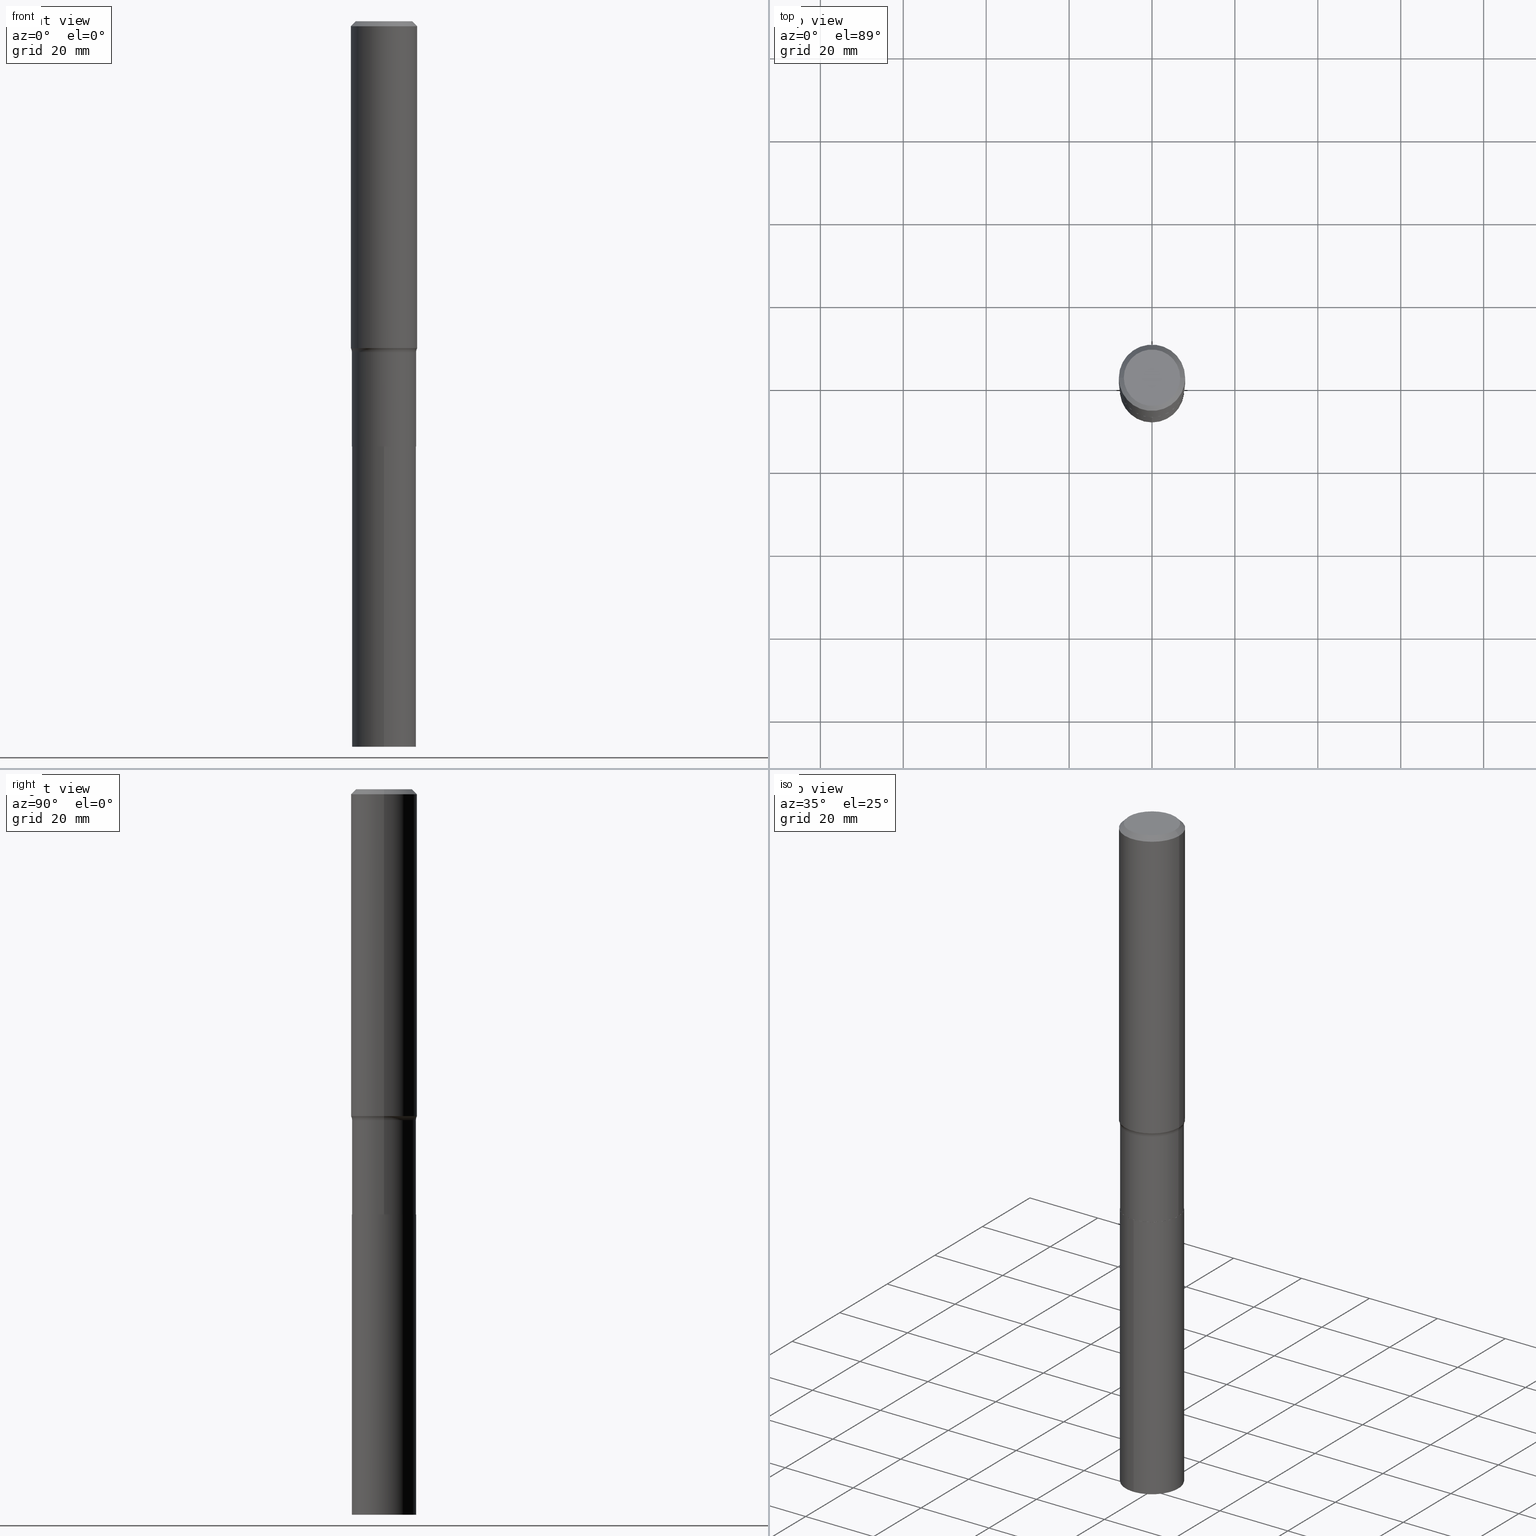
[diagram: canonical four-view strip — front | top / right | iso, engineering-drawing reading convention]
A machine part, canonical four-view strip (front | top / right | iso — engineering-drawing reading convention). The complete STEP part file that produces these views, byte-faithful:
ISO-10303-21;
HEADER;
FILE_DESCRIPTION (( 'STEP AP203' ),
    '1' );
FILE_NAME ('67916.STEP',
    '2024-04-19T17:05:05',
    ( '' ),
    ( '' ),
    'SwSTEP 2.0',
    'SolidWorks 2023',
    '' );
FILE_SCHEMA (( 'CONFIG_CONTROL_DESIGN' ));
ENDSEC;

DATA;
#1 = EDGE_CURVE ( 'NONE', #9, #276, #67, .T. ) ;
#2 = AXIS2_PLACEMENT_3D ( 'NONE', #173, #359, #240 ) ;
#3 = AXIS2_PLACEMENT_3D ( 'NONE', #283, #152, #318 ) ;
#4 = ORIENTED_EDGE ( 'NONE', *, *, #348, .F. ) ;
#5 = ORIENTED_EDGE ( 'NONE', *, *, #455, .T. ) ;
#6 = CC_DESIGN_DATE_AND_TIME_ASSIGNMENT ( #217, #436, ( #209 ) ) ;
#7 = PRODUCT ( '67916', '67916', '', ( #272 ) ) ;
#8 = CARTESIAN_POINT ( 'NONE',  ( 0.3149500000000000632, -2.325660151548443219E-15, -0.04724250000000034672 ) ) ;
#9 = VERTEX_POINT ( 'NONE', #286 ) ;
#10 = DIRECTION ( 'NONE',  ( -1.000000000000000000, 7.105427357601001859E-15, 0.000000000000000000 ) ) ;
#11 = CARTESIAN_POINT ( 'NONE',  ( 0.3045999999999999819, -1.622491378160409315E-14, -4.037800000000000722 ) ) ;
#12 = CIRCLE ( 'NONE', #57, 0.3045999999999999819 ) ;
#13 = VERTEX_POINT ( 'NONE', #201 ) ;
#14 = LOCAL_TIME ( 13, 5, 5.000000000000000000, #323 ) ;
#15 = DIRECTION ( 'NONE',  ( -1.000000000000000000, 6.982962677686266711E-15, 0.000000000000000000 ) ) ;
#16 = VERTEX_POINT ( 'NONE', #239 ) ;
#17 = PERSON_AND_ORGANIZATION ( #375, #422 ) ;
#18 = DIRECTION ( 'NONE',  ( 1.000000000000000000, -6.982962677686267499E-15, 4.876176775795936353E-29 ) ) ;
#19 = CIRCLE ( 'NONE', #193, 0.3045999999999999819 ) ;
#20 = APPLICATION_CONTEXT ( 'configuration controlled 3d designs of mechanical parts and assemblies' ) ;
#21 = EDGE_CURVE ( 'NONE', #97, #350, #12, .T. ) ;
#22 = EDGE_CURVE ( 'NONE', #449, #367, #351, .T. ) ;
#23 = AXIS2_PLACEMENT_3D ( 'NONE', #264, #194, #255 ) ;
#24 = CARTESIAN_POINT ( 'NONE',  ( -2.130501912961980867E-15, -0.3051000000000140822, -4.037799999999998946 ) ) ;
#25 = AXIS2_PLACEMENT_3D ( 'NONE', #138, #279, #208 ) ;
#26 = DIRECTION ( 'NONE',  ( -2.445468806185136597E-29, 3.491481338843145583E-15, 1.000000000000000000 ) ) ;
#27 = EDGE_CURVE ( 'NONE', #320, #13, #134, .T. ) ;
#28 = ORIENTED_EDGE ( 'NONE', *, *, #22, .F. ) ;
#29 = DIRECTION ( 'NONE',  ( -2.445318536696441627E-29, 3.491696533303765399E-15, 1.000000000000000000 ) ) ;
#30 = EDGE_CURVE ( 'NONE', #189, #16, #366, .T. ) ;
#31 = CARTESIAN_POINT ( 'NONE',  ( 0.000000000000000000, 0.000000000000000000, 0.000000000000000000 ) ) ;
#32 = FACE_OUTER_BOUND ( 'NONE', #314, .T. ) ;
#33 = ORIENTED_EDGE ( 'NONE', *, *, #381, .T. ) ;
#34 = CIRCLE ( 'NONE', #75, 0.3149500000000000632 ) ;
#35 = APPROVAL_DATE_TIME ( #363, #444 ) ;
#36 = CALENDAR_DATE ( 2024, 19, 4 ) ;
#37 = DIRECTION ( 'NONE',  ( -6.982962677686265922E-15, -1.000000000000000000, 3.491696533303765399E-15 ) ) ;
#38 = ORIENTED_EDGE ( 'NONE', *, *, #388, .F. ) ;
#39 = PERSON_AND_ORGANIZATION ( #375, #422 ) ;
#40 = AXIS2_PLACEMENT_3D ( 'NONE', #392, #26, #88 ) ;
#41 = ORIENTED_EDGE ( 'NONE', *, *, #213, .F. ) ;
#42 = CARTESIAN_POINT ( 'NONE',  ( 1.155300600762021849E-30, -1.649463071502985251E-16, -0.04724250000000034672 ) ) ;
#43 = LINE ( 'NONE', #287, #148 ) ;
#44 = EDGE_LOOP ( 'NONE', ( #324, #149 ) ) ;
#45 = DIRECTION ( 'NONE',  ( 1.000000000000000000, -6.982962677686267499E-15, 0.000000000000000000 ) ) ;
#46 = ORIENTED_EDGE ( 'NONE', *, *, #211, .F. ) ;
#47 = ORIENTED_EDGE ( 'NONE', *, *, #423, .F. ) ;
#48 = CIRCLE ( 'NONE', #393, 0.3050999999999998158 ) ;
#49 = ORIENTED_EDGE ( 'NONE', *, *, #377, .F. ) ;
#50 = CYLINDRICAL_SURFACE ( 'NONE', #40, 0.3050999999999999268 ) ;
#51 = ADVANCED_FACE ( 'NONE', ( #376 ), #107, .F. ) ;
#52 = CARTESIAN_POINT ( 'NONE',  ( 0.3050999999999999268, -2.130501912962079080E-15, 1.487721534295339594E-29 ) ) ;
#53 = DIRECTION ( 'NONE',  ( -2.445468806185136597E-29, 3.491481338843145583E-15, 1.000000000000000000 ) ) ;
#54 = ADVANCED_FACE ( 'NONE', ( #181 ), #404, .T. ) ;
#55 = FACE_OUTER_BOUND ( 'NONE', #235, .T. ) ;
#56 = DIRECTION ( 'NONE',  ( 1.000000000000000000, -6.982962677686267499E-15, 4.876236838442819371E-29 ) ) ;
#57 = AXIS2_PLACEMENT_3D ( 'NONE', #355, #179, #95 ) ;
#58 = AXIS2_PLACEMENT_3D ( 'NONE', #141, #459, #435 ) ;
#59 = EDGE_CURVE ( 'NONE', #347, #357, #118, .T. ) ;
#60 = CLOSED_SHELL ( 'NONE', ( #460, #237, #196, #171, #361, #288, #163, #125, #76, #164, #407, #177 ) ) ;
#61 = DIRECTION ( 'NONE',  ( 1.000000000000000000, -6.982962677686264344E-15, 0.000000000000000000 ) ) ;
#62 = LINE ( 'NONE', #116, #238 ) ;
#63 = AXIS2_PLACEMENT_3D ( 'NONE', #308, #127, #91 ) ;
#64 = CARTESIAN_POINT ( 'NONE',  ( 0.3050999999999998158, -1.310178372400889783E-14, -3.142300000000000537 ) ) ;
#65 = CARTESIAN_POINT ( 'NONE',  ( -0.3050999999999998158, -1.036585382337506044E-14, -3.142300000000000537 ) ) ;
#66 = LINE ( 'NONE', #431, #457 ) ;
#67 = CIRCLE ( 'NONE', #197, 0.3050999999999999268 ) ;
#68 = AXIS2_PLACEMENT_3D ( 'NONE', #390, #297, #203 ) ;
#69 = APPROVAL_STATUS ( 'not_yet_approved' ) ;
#70 = CARTESIAN_POINT ( 'NONE',  ( 0.3850999999999998313, -1.366042073822379633E-14, -3.142300000000000093 ) ) ;
#71 = DIRECTION ( 'NONE',  ( 1.000000000000000000, -6.982962677686273810E-15, 0.000000000000000000 ) ) ;
#72 = CARTESIAN_POINT ( 'NONE',  ( 9.874313945614344915E-29, -1.409790334998085431E-14, -4.037800000000000722 ) ) ;
#73 = PERSON_AND_ORGANIZATION ( #375, #422 ) ;
#74 = ORIENTED_EDGE ( 'NONE', *, *, #414, .F. ) ;
#75 = AXIS2_PLACEMENT_3D ( 'NONE', #454, #265, #271 ) ;
#76 = ADVANCED_FACE ( 'NONE', ( #55 ), #410, .T. ) ;
#77 = FACE_OUTER_BOUND ( 'NONE', #219, .T. ) ;
#78 = EDGE_CURVE ( 'NONE', #16, #189, #34, .T. ) ;
#79 = CARTESIAN_POINT ( 'NONE',  ( 9.874313945614344915E-29, -1.409790334998085431E-14, -4.037800000000000722 ) ) ;
#80 = ORIENTED_EDGE ( 'NONE', *, *, #315, .F. ) ;
#81 = DIRECTION ( 'NONE',  ( -2.445468806185136597E-29, 3.491481338843145583E-15, 1.000000000000000000 ) ) ;
#82 = CYLINDRICAL_SURFACE ( 'NONE', #267, 0.3149500000000002853 ) ;
#83 = PERSON_AND_ORGANIZATION ( #375, #422 ) ;
#84 = DIRECTION ( 'NONE',  ( 7.105427357601001859E-15, 1.000000000000000000, -3.491481338843145583E-15 ) ) ;
#85 =( GEOMETRIC_REPRESENTATION_CONTEXT ( 3 ) GLOBAL_UNCERTAINTY_ASSIGNED_CONTEXT ( ( #128 ) ) GLOBAL_UNIT_ASSIGNED_CONTEXT ( ( #245, #365, #289 ) ) REPRESENTATION_CONTEXT ( 'NONE', 'WORKASPACE' ) );
#86 = CARTESIAN_POINT ( 'NONE',  ( 7.590350070490401583E-29, -1.083700824945123372E-14, -3.103842523483722360 ) ) ;
#87 = PERSON_AND_ORGANIZATION ( #375, #422 ) ;
#88 = DIRECTION ( 'NONE',  ( 1.000000000000000000, -6.982962677686265133E-15, 4.876176775795935793E-29 ) ) ;
#89 = EDGE_LOOP ( 'NONE', ( #417, #188, #110, #46 ) ) ;
#90 = EDGE_CURVE ( 'NONE', #13, #320, #344, .T. ) ;
#91 = DIRECTION ( 'NONE',  ( 1.000000000000000000, 0.000000000000000000, 0.000000000000000000 ) ) ;
#92 = AXIS2_PLACEMENT_3D ( 'NONE', #162, #53, #227 ) ;
#93 = AXIS2_PLACEMENT_3D ( 'NONE', #126, #373, #187 ) ;
#94 = PERSON_AND_ORGANIZATION_ROLE ( 'creator' ) ;
#95 = DIRECTION ( 'NONE',  ( 1.000000000000000000, -6.982962677686269866E-15, 0.000000000000000000 ) ) ;
#96 = DIRECTION ( 'NONE',  ( -6.982962677686265133E-15, -1.000000000000000000, 3.581577179500837048E-15 ) ) ;
#97 = VERTEX_POINT ( 'NONE', #11 ) ;
#98 = CARTESIAN_POINT ( 'NONE',  ( 1.155300600762021849E-30, -1.649463071502985251E-16, -0.04724250000000034672 ) ) ;
#99 = PLANE ( 'NONE',  #23 ) ;
#100 = APPROVAL_PERSON_ORGANIZATION ( #437, #250, #115 ) ;
#101 = EDGE_CURVE ( 'NONE', #276, #357, #198, .T. ) ;
#102 = EDGE_LOOP ( 'NONE', ( #4, #117, #425, #258 ) ) ;
#103 = DIRECTION ( 'NONE',  ( -2.445468806185136597E-29, 3.491481338843145583E-15, 1.000000000000000000 ) ) ;
#104 = EDGE_LOOP ( 'NONE', ( #253, #215, #467, #28 ) ) ;
#105 = COORDINATED_UNIVERSAL_TIME_OFFSET ( 5, 0, .BEHIND. ) ;
#106 = LENGTH_MEASURE_WITH_UNIT ( LENGTH_MEASURE( 0.02539999999999999897 ), #427 );
#107 = PLANE ( 'NONE',  #280 ) ;
#108 = AXIS2_PLACEMENT_3D ( 'NONE', #461, #139, #428 ) ;
#109 = CIRCLE ( 'NONE', #58, 0.3050999999999999823 ) ;
#110 = ORIENTED_EDGE ( 'NONE', *, *, #30, .T. ) ;
#111 = CARTESIAN_POINT ( 'NONE',  ( -3.826124414564683467E-30, -4.873195857968637593E-14, -6.889800000000000146 ) ) ;
#112 = EDGE_CURVE ( 'NONE', #210, #347, #231, .T. ) ;
#113 = CC_DESIGN_PERSON_AND_ORGANIZATION_ASSIGNMENT ( #73, #214, ( #307 ) ) ;
#114 = DIRECTION ( 'NONE',  ( -2.445468806185136597E-29, 3.491481338843145583E-15, 1.000000000000000000 ) ) ;
#115 = APPROVAL_ROLE ( '' ) ;
#116 = CARTESIAN_POINT ( 'NONE',  ( -0.3050999999999999268, 2.167865886804065147E-15, -1.500767096036771338E-29 ) ) ;
#117 = ORIENTED_EDGE ( 'NONE', *, *, #414, .T. ) ;
#118 = CIRCLE ( 'NONE', #190, 0.07999999999999983513 ) ;
#119 = CARTESIAN_POINT ( 'NONE',  ( 0.3149500000000002853, -2.199284095337291843E-15, 1.535751875536931531E-29 ) ) ;
#120 = LOCAL_TIME ( 13, 5, 5.000000000000000000, #263 ) ;
#121 = DIRECTION ( 'NONE',  ( 1.000000000000000000, -6.982962677686266711E-15, 0.000000000000000000 ) ) ;
#122 = DIRECTION ( 'NONE',  ( 1.000000000000000000, -6.982962677686267499E-15, 0.000000000000000000 ) ) ;
#123 = PLANE ( 'NONE',  #191 ) ;
#124 = ORIENTED_EDGE ( 'NONE', *, *, #326, .T. ) ;
#125 = ADVANCED_FACE ( 'NONE', ( #370 ), #145, .T. ) ;
#126 = CARTESIAN_POINT ( 'NONE',  ( 7.684396629675556742E-29, -1.097128181104681915E-14, -3.142300000000000537 ) ) ;
#127 = DIRECTION ( 'NONE',  ( 0.000000000000000000, 0.000000000000000000, 1.000000000000000000 ) ) ;
#128 = UNCERTAINTY_MEASURE_WITH_UNIT (LENGTH_MEASURE( 1.000000000000000082E-05 ), #245, 'distance_accuracy_value', 'NONE');
#129 = MANIFOLD_SOLID_BREP ( 'Body-Move/Copy2[2]', #60 ) ;
#130 = APPROVAL_STATUS ( 'not_yet_approved' ) ;
#131 = AXIS2_PLACEMENT_3D ( 'NONE', #413, #81, #45 ) ;
#132 = APPLICATION_PROTOCOL_DEFINITION ( 'international standard', 'config_control_design', 1994, #20 ) ;
#133 = ORIENTED_EDGE ( 'NONE', *, *, #1, .F. ) ;
#134 = CIRCLE ( 'NONE', #207, 0.2677074999999999871 ) ;
#135 = CC_DESIGN_PERSON_AND_ORGANIZATION_ASSIGNMENT ( #87, #94, ( #309 ) ) ;
#136 = ORIENTED_EDGE ( 'NONE', *, *, #112, .T. ) ;
#137 = DIRECTION ( 'NONE',  ( -2.445468806185136597E-29, 3.491481338843145583E-15, 1.000000000000000000 ) ) ;
#138 = CARTESIAN_POINT ( 'NONE',  ( 9.874313945614344915E-29, -1.409790334998085431E-14, -4.037800000000000722 ) ) ;
#139 = DIRECTION ( 'NONE',  ( -2.445468806185136597E-29, 3.491481338843145583E-15, 1.000000000000000000 ) ) ;
#140 = ORIENTED_EDGE ( 'NONE', *, *, #78, .F. ) ;
#141 = CARTESIAN_POINT ( 'NONE',  ( 9.874313945614344915E-29, -1.409790334998085431E-14, -4.037800000000000722 ) ) ;
#142 = CIRCLE ( 'NONE', #452, 0.07999999999999983513 ) ;
#143 = APPROVAL_DATE_TIME ( #319, #250 ) ;
#144 = FACE_OUTER_BOUND ( 'NONE', #102, .T. ) ;
#145 = CYLINDRICAL_SURFACE ( 'NONE', #2, 0.3149500000000002853 ) ;
#146 = DATE_TIME_ROLE ( 'creation_date' ) ;
#147 = CLOSED_SHELL ( 'NONE', ( #54, #51, #396, #284 ) ) ;
#148 = VECTOR ( 'NONE', #466, 39.37007874015748143 ) ;
#149 = ORIENTED_EDGE ( 'NONE', *, *, #226, .F. ) ;
#150 = EDGE_LOOP ( 'NONE', ( #124, #5 ) ) ;
#151 = LINE ( 'NONE', #369, #291 ) ;
#152 = DIRECTION ( 'NONE',  ( -2.445318536696441347E-29, 3.491696533303765004E-15, 1.000000000000000000 ) ) ;
#153 = VERTEX_POINT ( 'NONE', #395 ) ;
#154 = DIRECTION ( 'NONE',  ( -2.445468806185136597E-29, 3.491481338843145583E-15, 1.000000000000000000 ) ) ;
#155 = DIMENSIONAL_EXPONENTS ( 1.000000000000000000, 0.000000000000000000, 0.000000000000000000, 0.000000000000000000, 0.000000000000000000, 0.000000000000000000, 0.000000000000000000 ) ;
#156 = CARTESIAN_POINT ( 'NONE',  ( 0.3050999999999999268, -1.622665952227350913E-14, -4.037300000000000111 ) ) ;
#157 = APPLICATION_PROTOCOL_DEFINITION ( 'international standard', 'config_control_design', 1994, #251 ) ;
#158 = VERTEX_POINT ( 'NONE', #65 ) ;
#159 = FACE_OUTER_BOUND ( 'NONE', #89, .T. ) ;
#160 = ORIENTED_EDGE ( 'NONE', *, *, #30, .F. ) ;
#161 = ORIENTED_EDGE ( 'NONE', *, *, #352, .F. ) ;
#162 = CARTESIAN_POINT ( 'NONE',  ( 7.684396629675554500E-29, -1.097128181104681757E-14, -3.142300000000000093 ) ) ;
#163 = ADVANCED_FACE ( 'NONE', ( #204 ), #299, .F. ) ;
#164 = ADVANCED_FACE ( 'NONE', ( #32 ), #99, .F. ) ;
#165 = DIRECTION ( 'NONE',  ( -2.445468806185136877E-29, 3.491481338843145188E-15, 1.000000000000000000 ) ) ;
#166 = CC_DESIGN_APPROVAL ( #250, ( #307 ) ) ;
#167 = ORIENTED_EDGE ( 'NONE', *, *, #388, .T. ) ;
#168 = CARTESIAN_POINT ( 'NONE',  ( 9.874313945614344915E-29, -1.409790334998085431E-14, -4.037800000000000722 ) ) ;
#169 = DIRECTION ( 'NONE',  ( -2.445318536696441627E-29, 3.491696533303765399E-15, 1.000000000000000000 ) ) ;
#170 = CARTESIAN_POINT ( 'NONE',  ( -0.3045999999999999819, -1.193359017685558770E-14, -4.037800000000000722 ) ) ;
#171 = ADVANCED_FACE ( 'NONE', ( #337 ), #379, .F. ) ;
#172 = DIRECTION ( 'NONE',  ( -2.445468806185136877E-29, 3.491481338843145188E-15, 1.000000000000000000 ) ) ;
#173 = CARTESIAN_POINT ( 'NONE',  ( 0.000000000000000000, 0.000000000000000000, 0.000000000000000000 ) ) ;
#174 = ORIENTED_EDGE ( 'NONE', *, *, #78, .T. ) ;
#175 = LINE ( 'NONE', #8, #345 ) ;
#176 = CONICAL_SURFACE ( 'NONE', #402, 0.3149500000000000632, 0.7853981633974453924 ) ;
#177 = ADVANCED_FACE ( 'NONE', ( #77 ), #391, .T. ) ;
#178 = SHAPE_DEFINITION_REPRESENTATION ( #374, #234 ) ;
#179 = DIRECTION ( 'NONE',  ( -2.445468806185136597E-29, 3.491481338843145583E-15, 1.000000000000000000 ) ) ;
#180 = CYLINDRICAL_SURFACE ( 'NONE', #353, 0.3050999999999999823 ) ;
#181 = FACE_OUTER_BOUND ( 'NONE', #104, .T. ) ;
#182 = ORIENTED_EDGE ( 'NONE', *, *, #261, .T. ) ;
#183 = AXIS2_PLACEMENT_3D ( 'NONE', #195, #220, #340 ) ;
#184 = ORIENTED_EDGE ( 'NONE', *, *, #247, .F. ) ;
#185 = FACE_OUTER_BOUND ( 'NONE', #277, .T. ) ;
#186 = PRODUCT_RELATED_PRODUCT_CATEGORY ( 'detail', '', ( #7 ) ) ;
#187 = DIRECTION ( 'NONE',  ( 1.000000000000000000, -6.982962677686266711E-15, 0.000000000000000000 ) ) ;
#188 = ORIENTED_EDGE ( 'NONE', *, *, #377, .T. ) ;
#189 = VERTEX_POINT ( 'NONE', #419 ) ;
#190 = AXIS2_PLACEMENT_3D ( 'NONE', #70, #439, #71 ) ;
#191 = AXIS2_PLACEMENT_3D ( 'NONE', #262, #221, #224 ) ;
#192 = CARTESIAN_POINT ( 'NONE',  ( 0.000000000000000000, 0.000000000000000000, 0.000000000000000000 ) ) ;
#193 = AXIS2_PLACEMENT_3D ( 'NONE', #451, #114, #418 ) ;
#194 = DIRECTION ( 'NONE',  ( 2.438088387897960049E-29, -3.491481338843145188E-15, -1.000000000000000000 ) ) ;
#195 = CARTESIAN_POINT ( 'NONE',  ( 9.874313945614344915E-29, -1.409790334998085431E-14, -4.037800000000000722 ) ) ;
#196 = ADVANCED_FACE ( 'NONE', ( #301 ), #82, .T. ) ;
#197 = AXIS2_PLACEMENT_3D ( 'NONE', #225, #137, #61 ) ;
#198 = LINE ( 'NONE', #52, #463 ) ;
#199 = CC_DESIGN_APPROVAL ( #444, ( #209 ) ) ;
#200 = VECTOR ( 'NONE', #406, 39.37007874015748143 ) ;
#201 = CARTESIAN_POINT ( 'NONE',  ( 0.2677074999999999871, -2.081133459643432627E-15, 4.096137381461924987E-18 ) ) ;
#202 = DIRECTION ( 'NONE',  ( -6.982962677686265133E-15, -1.000000000000000000, 3.581577179500837048E-15 ) ) ;
#203 = DIRECTION ( 'NONE',  ( 1.000000000000000000, -6.982962677686264344E-15, 0.000000000000000000 ) ) ;
#204 = FACE_OUTER_BOUND ( 'NONE', #450, .T. ) ;
#205 = CC_DESIGN_PERSON_AND_ORGANIZATION_ASSIGNMENT ( #39, #408, ( #209 ) ) ;
#206 = DIRECTION ( 'NONE',  ( -2.445468806185136597E-29, 3.491481338843145583E-15, 1.000000000000000000 ) ) ;
#207 = AXIS2_PLACEMENT_3D ( 'NONE', #316, #458, #278 ) ;
#208 = DIRECTION ( 'NONE',  ( 1.000000000000000000, -6.982962677686269866E-15, 0.000000000000000000 ) ) ;
#209 = SECURITY_CLASSIFICATION ( '', '', #329 ) ;
#210 = VERTEX_POINT ( 'NONE', #303 ) ;
#211 = EDGE_CURVE ( 'NONE', #320, #16, #151, .T. ) ;
#212 = CALENDAR_DATE ( 2024, 19, 4 ) ;
#213 = EDGE_CURVE ( 'NONE', #347, #189, #382, .T. ) ;
#214 = PERSON_AND_ORGANIZATION_ROLE ( 'design_supplier' ) ;
#215 = ORIENTED_EDGE ( 'NONE', *, *, #348, .T. ) ;
#216 = APPROVAL_PERSON_ORGANIZATION ( #83, #421, #268 ) ;
#217 = DATE_AND_TIME ( #243, #447 ) ;
#218 = FACE_OUTER_BOUND ( 'NONE', #44, .T. ) ;
#219 = EDGE_LOOP ( 'NONE', ( #161, #273, #430, #133 ) ) ;
#220 = DIRECTION ( 'NONE',  ( -2.445468806185136597E-29, 3.491481338843145583E-15, 1.000000000000000000 ) ) ;
#221 = DIRECTION ( 'NONE',  ( 2.445318536696441066E-29, -3.491696533303765399E-15, -1.000000000000000000 ) ) ;
#222 = AXIS2_PLACEMENT_3D ( 'NONE', #72, #294, #246 ) ;
#223 = DIRECTION ( 'NONE',  ( -2.445468806185136877E-29, 3.491481338843145188E-15, 1.000000000000000000 ) ) ;
#224 = DIRECTION ( 'NONE',  ( 6.982962677686265922E-15, 1.000000000000000000, -3.491696533303765399E-15 ) ) ;
#225 = CARTESIAN_POINT ( 'NONE',  ( 9.873091211211252113E-29, -1.409615760931143202E-14, -4.037300000000000111 ) ) ;
#226 = EDGE_CURVE ( 'NONE', #350, #97, #19, .T. ) ;
#227 = DIRECTION ( 'NONE',  ( 1.000000000000000000, -6.982962677686266711E-15, 4.883557194083112901E-29 ) ) ;
#228 = DIRECTION ( 'NONE',  ( -6.982962677686265133E-15, -1.000000000000000000, 3.581577179500837048E-15 ) ) ;
#229 = ORIENTED_EDGE ( 'NONE', *, *, #254, .F. ) ;
#230 = CARTESIAN_POINT ( 'NONE',  ( -1.001697619218022568E-46, 1.430158722866391086E-32, 4.096137381448112218E-18 ) ) ;
#231 = CIRCLE ( 'NONE', #310, 0.3149500000000003963 ) ;
#232 = CIRCLE ( 'NONE', #93, 0.3050999999999998158 ) ;
#233 = EDGE_CURVE ( 'NONE', #97, #276, #260, .T. ) ;
#234 = ADVANCED_BREP_SHAPE_REPRESENTATION ( '67916', ( #432, #129, #63 ), #85 ) ;
#235 = EDGE_LOOP ( 'NONE', ( #49, #241, #295, #174 ) ) ;
#236 = CARTESIAN_POINT ( 'NONE',  ( -2.130501912961911053E-15, -0.3051000000000240187, -6.889800000000000146 ) ) ;
#237 = ADVANCED_FACE ( 'NONE', ( #159 ), #176, .T. ) ;
#238 = VECTOR ( 'NONE', #172, 39.37007874015748143 ) ;
#239 = CARTESIAN_POINT ( 'NONE',  ( -0.3149500000000000632, -3.263122932024328239E-15, -0.04724250000000034672 ) ) ;
#240 = DIRECTION ( 'NONE',  ( 1.000000000000000000, -6.982962677686267499E-15, 4.876176775795936353E-29 ) ) ;
#241 = ORIENTED_EDGE ( 'NONE', *, *, #27, .F. ) ;
#242 = CARTESIAN_POINT ( 'NONE',  ( 9.874313945614344915E-29, -1.409790334998085431E-14, -4.037800000000000722 ) ) ;
#243 = CALENDAR_DATE ( 2024, 19, 4 ) ;
#244 = ORIENTED_EDGE ( 'NONE', *, *, #59, .F. ) ;
#245 =( CONVERSION_BASED_UNIT ( 'INCH', #106 ) LENGTH_UNIT ( ) NAMED_UNIT ( #155 ) );
#246 = DIRECTION ( 'NONE',  ( -6.982962677686265133E-15, -1.000000000000000000, 3.581577179500837048E-15 ) ) ;
#247 = EDGE_CURVE ( 'NONE', #347, #210, #292, .T. ) ;
#248 = AXIS2_PLACEMENT_3D ( 'NONE', #31, #103, #257 ) ;
#249 = DIRECTION ( 'NONE',  ( -2.445318536696441066E-29, 3.491696533303765399E-15, 1.000000000000000000 ) ) ;
#250 = APPROVAL ( #252, 'UNSPECIFIED' ) ;
#251 = APPLICATION_CONTEXT ( 'configuration controlled 3d designs of mechanical parts and assemblies' ) ;
#252 = APPROVAL_STATUS ( 'not_yet_approved' ) ;
#253 = ORIENTED_EDGE ( 'NONE', *, *, #315, .T. ) ;
#254 = EDGE_CURVE ( 'NONE', #357, #158, #232, .T. ) ;
#255 = DIRECTION ( 'NONE',  ( -1.000000000000000000, 6.982962677686265922E-15, -4.876176775795935793E-29 ) ) ;
#256 = PERSON_AND_ORGANIZATION_ROLE ( 'creator' ) ;
#257 = DIRECTION ( 'NONE',  ( 1.000000000000000000, -6.982962677686265133E-15, 4.876176775795935793E-29 ) ) ;
#258 = ORIENTED_EDGE ( 'NONE', *, *, #455, .F. ) ;
#259 = AXIS2_PLACEMENT_3D ( 'NONE', #168, #311, #96 ) ;
#260 = LINE ( 'NONE', #416, #200 ) ;
#261 = EDGE_CURVE ( 'NONE', #210, #158, #142, .T. ) ;
#262 = CARTESIAN_POINT ( 'NONE',  ( 9.874313945614344915E-29, -1.409790334998085431E-14, -4.037800000000000722 ) ) ;
#263 = COORDINATED_UNIVERSAL_TIME_OFFSET ( 5, 0, .BEHIND. ) ;
#264 = CARTESIAN_POINT ( 'NONE',  ( -5.008488096090112840E-47, 7.150793614331955432E-33, 2.048068690724056109E-18 ) ) ;
#265 = DIRECTION ( 'NONE',  ( -2.445468806185136597E-29, 3.491481338843145583E-15, 1.000000000000000000 ) ) ;
#266 = APPROVAL_DATE_TIME ( #305, #421 ) ;
#267 = AXIS2_PLACEMENT_3D ( 'NONE', #192, #383, #18 ) ;
#268 = APPROVAL_ROLE ( '' ) ;
#269 = CARTESIAN_POINT ( 'NONE',  ( 2.167865886804233963E-15, 0.3050999999999858825, -4.037800000000001610 ) ) ;
#270 = EDGE_LOOP ( 'NONE', ( #80, #74 ) ) ;
#271 = DIRECTION ( 'NONE',  ( 1.000000000000000000, -6.982962677686266711E-15, 0.000000000000000000 ) ) ;
#272 = MECHANICAL_CONTEXT ( 'NONE', #20, 'mechanical' ) ;
#273 = ORIENTED_EDGE ( 'NONE', *, *, #226, .T. ) ;
#274 = ORIENTED_EDGE ( 'NONE', *, *, #233, .F. ) ;
#275 = ORIENTED_EDGE ( 'NONE', *, *, #247, .T. ) ;
#276 = VERTEX_POINT ( 'NONE', #156 ) ;
#277 = EDGE_LOOP ( 'NONE', ( #397, #33, #229, #338 ) ) ;
#278 = DIRECTION ( 'NONE',  ( 1.000000000000000000, -6.982962677686267499E-15, 4.876236838442819371E-29 ) ) ;
#279 = DIRECTION ( 'NONE',  ( -2.445468806185136597E-29, 3.491481338843145583E-15, 1.000000000000000000 ) ) ;
#280 = AXIS2_PLACEMENT_3D ( 'NONE', #111, #249, #37 ) ;
#281 = VECTOR ( 'NONE', #165, 39.37007874015748143 ) ;
#282 = ORIENTED_EDGE ( 'NONE', *, *, #90, .T. ) ;
#283 = CARTESIAN_POINT ( 'NONE',  ( 1.684836241227259947E-28, -2.405622186296319734E-14, -6.889800000000001035 ) ) ;
#284 = ADVANCED_FACE ( 'NONE', ( #448 ), #123, .F. ) ;
#285 = PERSON_AND_ORGANIZATION ( #375, #422 ) ;
#286 = CARTESIAN_POINT ( 'NONE',  ( -0.3050999999999999823, -1.036585382337505728E-14, -4.037300000000000111 ) ) ;
#287 = CARTESIAN_POINT ( 'NONE',  ( -0.3149500000000002853, 2.237854346276437562E-15, -1.549218606675783797E-29 ) ) ;
#288 = ADVANCED_FACE ( 'NONE', ( #378 ), #50, .T. ) ;
#289 =( NAMED_UNIT ( * ) SI_UNIT ( $, .STERADIAN. ) SOLID_ANGLE_UNIT ( ) );
#290 = DATE_AND_TIME ( #212, #14 ) ;
#291 = VECTOR ( 'NONE', #440, 39.37007874015748143 ) ;
#292 = CIRCLE ( 'NONE', #131, 0.3149500000000003963 ) ;
#293 = ORIENTED_EDGE ( 'NONE', *, *, #27, .T. ) ;
#294 = DIRECTION ( 'NONE',  ( -2.445318536696441347E-29, 3.491696533303765004E-15, 1.000000000000000000 ) ) ;
#295 = ORIENTED_EDGE ( 'NONE', *, *, #211, .T. ) ;
#296 = DIRECTION ( 'NONE',  ( 2.445468806185136597E-29, -3.491481338843145583E-15, -1.000000000000000000 ) ) ;
#297 = DIRECTION ( 'NONE',  ( -2.445468806185136597E-29, 3.491481338843145583E-15, 1.000000000000000000 ) ) ;
#298 = ORIENTED_EDGE ( 'NONE', *, *, #381, .F. ) ;
#299 = TOROIDAL_SURFACE ( 'NONE', #108, 0.3850999999999998313, 0.07999999999999983513 ) ;
#300 = CIRCLE ( 'NONE', #328, 0.3050999999999999823 ) ;
#301 = FACE_OUTER_BOUND ( 'NONE', #434, .T. ) ;
#302 = VERTEX_POINT ( 'NONE', #269 ) ;
#303 = CARTESIAN_POINT ( 'NONE',  ( -0.3149500000000003408, -8.599153903174796155E-15, -3.103842523483722360 ) ) ;
#304 = ORIENTED_EDGE ( 'NONE', *, *, #101, .T. ) ;
#305 = DATE_AND_TIME ( #339, #120 ) ;
#306 = ORIENTED_EDGE ( 'NONE', *, *, #213, .T. ) ;
#307 = PRODUCT_DEFINITION_FORMATION_WITH_SPECIFIED_SOURCE ( 'ANY', '', #7, .NOT_KNOWN. ) ;
#308 = CARTESIAN_POINT ( 'NONE',  ( 0.000000000000000000, 0.000000000000000000, 0.000000000000000000 ) ) ;
#309 = PRODUCT_DEFINITION ( 'UNKNOWN', '', #307, #399 ) ;
#310 = AXIS2_PLACEMENT_3D ( 'NONE', #86, #346, #122 ) ;
#311 = DIRECTION ( 'NONE',  ( -2.445318536696441347E-29, 3.491696533303765004E-15, 1.000000000000000000 ) ) ;
#312 = CIRCLE ( 'NONE', #3, 0.3050999999999999823 ) ;
#313 = DIRECTION ( 'NONE',  ( -2.445318536696441347E-29, 3.491696533303765004E-15, 1.000000000000000000 ) ) ;
#314 = EDGE_LOOP ( 'NONE', ( #293, #282 ) ) ;
#315 = EDGE_CURVE ( 'NONE', #449, #153, #300, .T. ) ;
#316 = CARTESIAN_POINT ( 'NONE',  ( -1.001697619218022568E-46, 1.430158722866391086E-32, 4.096137381448112218E-18 ) ) ;
#317 = CARTESIAN_POINT ( 'NONE',  ( 7.684396629675556742E-29, -1.097128181104681915E-14, -3.142300000000000537 ) ) ;
#318 = DIRECTION ( 'NONE',  ( -6.982962677686265133E-15, -1.000000000000000000, 3.581577179500837048E-15 ) ) ;
#319 = DATE_AND_TIME ( #36, #368 ) ;
#320 = VERTEX_POINT ( 'NONE', #349 ) ;
#321 = DIRECTION ( 'NONE',  ( 0.7071067811865454633, -7.319954787623248157E-15, -0.7071067811865495711 ) ) ;
#322 = COORDINATED_UNIVERSAL_TIME_OFFSET ( 5, 0, .BEHIND. ) ;
#323 = COORDINATED_UNIVERSAL_TIME_OFFSET ( 5, 0, .BEHIND. ) ;
#324 = ORIENTED_EDGE ( 'NONE', *, *, #21, .F. ) ;
#325 = PERSON_AND_ORGANIZATION ( #375, #422 ) ;
#326 = EDGE_CURVE ( 'NONE', #367, #302, #401, .T. ) ;
#327 = ORIENTED_EDGE ( 'NONE', *, *, #112, .F. ) ;
#328 = AXIS2_PLACEMENT_3D ( 'NONE', #387, #313, #228 ) ;
#329 = SECURITY_CLASSIFICATION_LEVEL ( 'unclassified' ) ;
#330 = ORIENTED_EDGE ( 'NONE', *, *, #59, .T. ) ;
#331 = FACE_OUTER_BOUND ( 'NONE', #411, .T. ) ;
#332 = EDGE_LOOP ( 'NONE', ( #298, #420, #304, #38 ) ) ;
#333 = CARTESIAN_POINT ( 'NONE',  ( -0.3850999999999998313, -8.234981735634671768E-15, -3.142300000000000093 ) ) ;
#334 = AXIS2_PLACEMENT_3D ( 'NONE', #98, #154, #121 ) ;
#335 = VECTOR ( 'NONE', #169, 39.37007874015748143 ) ;
#336 = CIRCLE ( 'NONE', #68, 0.3050999999999999268 ) ;
#337 = FACE_OUTER_BOUND ( 'NONE', #341, .T. ) ;
#338 = ORIENTED_EDGE ( 'NONE', *, *, #101, .F. ) ;
#339 = CALENDAR_DATE ( 2024, 19, 4 ) ;
#340 = DIRECTION ( 'NONE',  ( 1.000000000000000000, -6.982962677686269866E-15, 0.000000000000000000 ) ) ;
#341 = EDGE_LOOP ( 'NONE', ( #327, #182, #167, #244 ) ) ;
#342 = DIRECTION ( 'NONE',  ( 2.445468806185136597E-29, -3.491481338843145583E-15, -1.000000000000000000 ) ) ;
#343 = EDGE_CURVE ( 'NONE', #276, #9, #336, .T. ) ;
#344 = CIRCLE ( 'NONE', #446, 0.2677074999999999871 ) ;
#345 = VECTOR ( 'NONE', #321, 39.37007874015748143 ) ;
#346 = DIRECTION ( 'NONE',  ( -2.445468806185136597E-29, 3.491481338843145583E-15, 1.000000000000000000 ) ) ;
#347 = VERTEX_POINT ( 'NONE', #445 ) ;
#348 = EDGE_CURVE ( 'NONE', #153, #302, #66, .T. ) ;
#349 = CARTESIAN_POINT ( 'NONE',  ( -0.2677074999999999871, 1.951864634611843833E-15, 4.096137381434750116E-18 ) ) ;
#350 = VERTEX_POINT ( 'NONE', #462 ) ;
#351 = LINE ( 'NONE', #24, #335 ) ;
#352 = EDGE_CURVE ( 'NONE', #350, #9, #362, .T. ) ;
#353 = AXIS2_PLACEMENT_3D ( 'NONE', #79, #371, #202 ) ;
#354 = CC_DESIGN_DATE_AND_TIME_ASSIGNMENT ( #290, #146, ( #309 ) ) ;
#355 = CARTESIAN_POINT ( 'NONE',  ( 9.874313945614344915E-29, -1.409790334998085431E-14, -4.037800000000000722 ) ) ;
#356 = PLANE ( 'NONE',  #380 ) ;
#357 = VERTEX_POINT ( 'NONE', #64 ) ;
#358 = CYLINDRICAL_SURFACE ( 'NONE', #248, 0.3050999999999999268 ) ;
#359 = DIRECTION ( 'NONE',  ( -2.445468806185136597E-29, 3.491481338843145583E-15, 1.000000000000000000 ) ) ;
#360 = ORIENTED_EDGE ( 'NONE', *, *, #261, .F. ) ;
#361 = ADVANCED_FACE ( 'NONE', ( #185 ), #358, .T. ) ;
#362 = LINE ( 'NONE', #170, #364 ) ;
#363 = DATE_AND_TIME ( #433, #464 ) ;
#364 = VECTOR ( 'NONE', #468, 39.37007874015748143 ) ;
#365 =( NAMED_UNIT ( * ) PLANE_ANGLE_UNIT ( ) SI_UNIT ( $, .RADIAN. ) );
#366 = CIRCLE ( 'NONE', #334, 0.3149500000000000632 ) ;
#367 = VERTEX_POINT ( 'NONE', #441 ) ;
#368 = LOCAL_TIME ( 13, 5, 5.000000000000000000, #403 ) ;
#369 = CARTESIAN_POINT ( 'NONE',  ( -0.3149500000000000632, 2.034337788186991987E-15, -0.04724250000000034672 ) ) ;
#370 = FACE_OUTER_BOUND ( 'NONE', #424, .T. ) ;
#371 = DIRECTION ( 'NONE',  ( -2.445318536696441347E-29, 3.491696533303765004E-15, 1.000000000000000000 ) ) ;
#372 = ORIENTED_EDGE ( 'NONE', *, *, #254, .T. ) ;
#373 = DIRECTION ( 'NONE',  ( -2.445468806185136597E-29, 3.491481338843145583E-15, 1.000000000000000000 ) ) ;
#374 = PRODUCT_DEFINITION_SHAPE ( 'NONE', 'NONE',  #309 ) ;
#375 = PERSON ( 'UNSPECIFIED', 'UNSPECIFIED', 'UNSPECIFIED', ('UNSPECIFIED'), ('UNSPECIFIED'), ('UNSPECIFIED') ) ;
#376 = FACE_OUTER_BOUND ( 'NONE', #270, .T. ) ;
#377 = EDGE_CURVE ( 'NONE', #13, #189, #175, .T. ) ;
#378 = FACE_OUTER_BOUND ( 'NONE', #332, .T. ) ;
#379 = TOROIDAL_SURFACE ( 'NONE', #92, 0.3850999999999998313, 0.07999999999999983513 ) ;
#380 = AXIS2_PLACEMENT_3D ( 'NONE', #242, #398, #394 ) ;
#381 = EDGE_CURVE ( 'NONE', #9, #158, #62, .T. ) ;
#382 = LINE ( 'NONE', #119, #281 ) ;
#383 = DIRECTION ( 'NONE',  ( -2.445468806185136597E-29, 3.491481338843145583E-15, 1.000000000000000000 ) ) ;
#384 = CARTESIAN_POINT ( 'NONE',  ( 1.155300600762021849E-30, -1.649463071502985251E-16, -0.04724250000000034672 ) ) ;
#385 = DIRECTION ( 'NONE',  ( -2.445468806185136597E-29, 3.491481338843145583E-15, 1.000000000000000000 ) ) ;
#386 = CC_DESIGN_SECURITY_CLASSIFICATION ( #209, ( #307 ) ) ;
#387 = CARTESIAN_POINT ( 'NONE',  ( 1.684836241227259947E-28, -2.405622186296319734E-14, -6.889800000000001035 ) ) ;
#388 = EDGE_CURVE ( 'NONE', #158, #357, #48, .T. ) ;
#389 = ORIENTED_EDGE ( 'NONE', *, *, #343, .F. ) ;
#390 = CARTESIAN_POINT ( 'NONE',  ( 9.873091211211252113E-29, -1.409615760931143202E-14, -4.037300000000000111 ) ) ;
#391 = CONICAL_SURFACE ( 'NONE', #183, 0.3045999999999999819, 0.7853981633972434429 ) ;
#392 = CARTESIAN_POINT ( 'NONE',  ( 0.000000000000000000, 0.000000000000000000, 0.000000000000000000 ) ) ;
#393 = AXIS2_PLACEMENT_3D ( 'NONE', #317, #206, #409 ) ;
#394 = DIRECTION ( 'NONE',  ( 1.000000000000000000, -6.982962677686265922E-15, 4.876176775795935793E-29 ) ) ;
#395 = CARTESIAN_POINT ( 'NONE',  ( 2.167865886804198859E-15, 0.3050999999999759460, -6.889800000000002811 ) ) ;
#396 = ADVANCED_FACE ( 'NONE', ( #144 ), #180, .T. ) ;
#397 = ORIENTED_EDGE ( 'NONE', *, *, #343, .T. ) ;
#398 = DIRECTION ( 'NONE',  ( -2.438088387897960049E-29, 3.491481338843145188E-15, 1.000000000000000000 ) ) ;
#399 = DESIGN_CONTEXT ( 'detailed design', #251, 'design' ) ;
#400 = CC_DESIGN_PERSON_AND_ORGANIZATION_ASSIGNMENT ( #17, #415, ( #7 ) ) ;
#401 = CIRCLE ( 'NONE', #259, 0.3050999999999999823 ) ;
#402 = AXIS2_PLACEMENT_3D ( 'NONE', #42, #296, #443 ) ;
#403 = COORDINATED_UNIVERSAL_TIME_OFFSET ( 5, 0, .BEHIND. ) ;
#404 = CYLINDRICAL_SURFACE ( 'NONE', #222, 0.3050999999999999823 ) ;
#405 = ORIENTED_EDGE ( 'NONE', *, *, #352, .T. ) ;
#406 = DIRECTION ( 'NONE',  ( 0.7071067811864026886, -2.468850131080739687E-15, 0.7071067811866923458 ) ) ;
#407 = ADVANCED_FACE ( 'NONE', ( #218 ), #356, .F. ) ;
#408 = PERSON_AND_ORGANIZATION_ROLE ( 'classification_officer' ) ;
#409 = DIRECTION ( 'NONE',  ( 1.000000000000000000, -6.982962677686266711E-15, 0.000000000000000000 ) ) ;
#410 = CONICAL_SURFACE ( 'NONE', #456, 0.3149500000000000632, 0.7853981633974453924 ) ;
#411 = EDGE_LOOP ( 'NONE', ( #426, #405, #389, #274 ) ) ;
#412 = CC_DESIGN_APPROVAL ( #421, ( #309 ) ) ;
#413 = CARTESIAN_POINT ( 'NONE',  ( 7.590350070490401583E-29, -1.083700824945123372E-14, -3.103842523483722360 ) ) ;
#414 = EDGE_CURVE ( 'NONE', #153, #449, #312, .T. ) ;
#415 = PERSON_AND_ORGANIZATION_ROLE ( 'design_owner' ) ;
#416 = CARTESIAN_POINT ( 'NONE',  ( 0.3045999999999999819, -1.622491378160409315E-14, -4.037800000000000722 ) ) ;
#417 = ORIENTED_EDGE ( 'NONE', *, *, #90, .F. ) ;
#418 = DIRECTION ( 'NONE',  ( 1.000000000000000000, -6.982962677686269866E-15, 0.000000000000000000 ) ) ;
#419 = CARTESIAN_POINT ( 'NONE',  ( 0.3149500000000000632, -2.364230402487588938E-15, -0.04724250000000034672 ) ) ;
#420 = ORIENTED_EDGE ( 'NONE', *, *, #1, .T. ) ;
#421 = APPROVAL ( #130, 'UNSPECIFIED' ) ;
#422 = ORGANIZATION ( 'UNSPECIFIED', 'UNSPECIFIED', '' ) ;
#423 = EDGE_CURVE ( 'NONE', #210, #16, #43, .T. ) ;
#424 = EDGE_LOOP ( 'NONE', ( #47, #136, #306, #140 ) ) ;
#425 = ORIENTED_EDGE ( 'NONE', *, *, #22, .T. ) ;
#426 = ORIENTED_EDGE ( 'NONE', *, *, #21, .T. ) ;
#427 =( LENGTH_UNIT ( ) NAMED_UNIT ( * ) SI_UNIT ( $, .METRE. ) );
#428 = DIRECTION ( 'NONE',  ( 1.000000000000000000, -6.982962677686266711E-15, 4.883557194083112901E-29 ) ) ;
#429 = APPROVAL_PERSON_ORGANIZATION ( #285, #444, #465 ) ;
#430 = ORIENTED_EDGE ( 'NONE', *, *, #233, .T. ) ;
#431 = CARTESIAN_POINT ( 'NONE',  ( 2.167865886804164149E-15, 0.3050999999999858825, -4.037800000000001610 ) ) ;
#432 = MANIFOLD_SOLID_BREP ( 'Body-Move/Copy2[1]', #147 ) ;
#433 = CALENDAR_DATE ( 2024, 19, 4 ) ;
#434 = EDGE_LOOP ( 'NONE', ( #275, #442, #160, #41 ) ) ;
#435 = DIRECTION ( 'NONE',  ( -6.982962677686265133E-15, -1.000000000000000000, 3.581577179500837048E-15 ) ) ;
#436 = DATE_TIME_ROLE ( 'classification_date' ) ;
#437 = PERSON_AND_ORGANIZATION ( #375, #422 ) ;
#438 = CONICAL_SURFACE ( 'NONE', #25, 0.3045999999999999819, 0.7853981633972434429 ) ;
#439 = DIRECTION ( 'NONE',  ( -6.982962677686266711E-15, -1.000000000000000000, 3.491481338843145583E-15 ) ) ;
#440 = DIRECTION ( 'NONE',  ( -0.7071067811865454633, 2.468850131082235367E-15, -0.7071067811865495711 ) ) ;
#441 = CARTESIAN_POINT ( 'NONE',  ( -2.130501912961980867E-15, -0.3051000000000140822, -4.037799999999998946 ) ) ;
#442 = ORIENTED_EDGE ( 'NONE', *, *, #423, .T. ) ;
#443 = DIRECTION ( 'NONE',  ( -1.000000000000000000, 6.982962677686266711E-15, 0.000000000000000000 ) ) ;
#444 = APPROVAL ( #69, 'UNSPECIFIED' ) ;
#445 = CARTESIAN_POINT ( 'NONE',  ( 0.3149500000000003408, -1.303629234478852674E-14, -3.103842523483722360 ) ) ;
#446 = AXIS2_PLACEMENT_3D ( 'NONE', #230, #385, #56 ) ;
#447 = LOCAL_TIME ( 13, 5, 5.000000000000000000, #105 ) ;
#448 = FACE_OUTER_BOUND ( 'NONE', #150, .T. ) ;
#449 = VERTEX_POINT ( 'NONE', #236 ) ;
#450 = EDGE_LOOP ( 'NONE', ( #360, #184, #330, #372 ) ) ;
#451 = CARTESIAN_POINT ( 'NONE',  ( 9.874313945614344915E-29, -1.409790334998085431E-14, -4.037800000000000722 ) ) ;
#452 = AXIS2_PLACEMENT_3D ( 'NONE', #333, #84, #10 ) ;
#453 = CC_DESIGN_PERSON_AND_ORGANIZATION_ASSIGNMENT ( #325, #256, ( #307 ) ) ;
#454 = CARTESIAN_POINT ( 'NONE',  ( 1.155300600762021849E-30, -1.649463071502985251E-16, -0.04724250000000034672 ) ) ;
#455 = EDGE_CURVE ( 'NONE', #302, #367, #109, .T. ) ;
#456 = AXIS2_PLACEMENT_3D ( 'NONE', #384, #342, #15 ) ;
#457 = VECTOR ( 'NONE', #29, 39.37007874015748143 ) ;
#458 = DIRECTION ( 'NONE',  ( -2.445468806185136597E-29, 3.491481338843145583E-15, 1.000000000000000000 ) ) ;
#459 = DIRECTION ( 'NONE',  ( -2.445318536696441347E-29, 3.491696533303765004E-15, 1.000000000000000000 ) ) ;
#460 = ADVANCED_FACE ( 'NONE', ( #331 ), #438, .T. ) ;
#461 = CARTESIAN_POINT ( 'NONE',  ( 7.684396629675554500E-29, -1.097128181104681757E-14, -3.142300000000000093 ) ) ;
#462 = CARTESIAN_POINT ( 'NONE',  ( -0.3045999999999999819, -1.193094094968147571E-14, -4.037800000000000722 ) ) ;
#463 = VECTOR ( 'NONE', #223, 39.37007874015748143 ) ;
#464 = LOCAL_TIME ( 13, 5, 5.000000000000000000, #322 ) ;
#465 = APPROVAL_ROLE ( '' ) ;
#466 = DIRECTION ( 'NONE',  ( -2.445468806185136877E-29, 3.491481338843145188E-15, 1.000000000000000000 ) ) ;
#467 = ORIENTED_EDGE ( 'NONE', *, *, #326, .F. ) ;
#468 = DIRECTION ( 'NONE',  ( -0.7071067811864026886, 7.493145998869830357E-15, 0.7071067811866923458 ) ) ;
ENDSEC;
END-ISO-10303-21;
